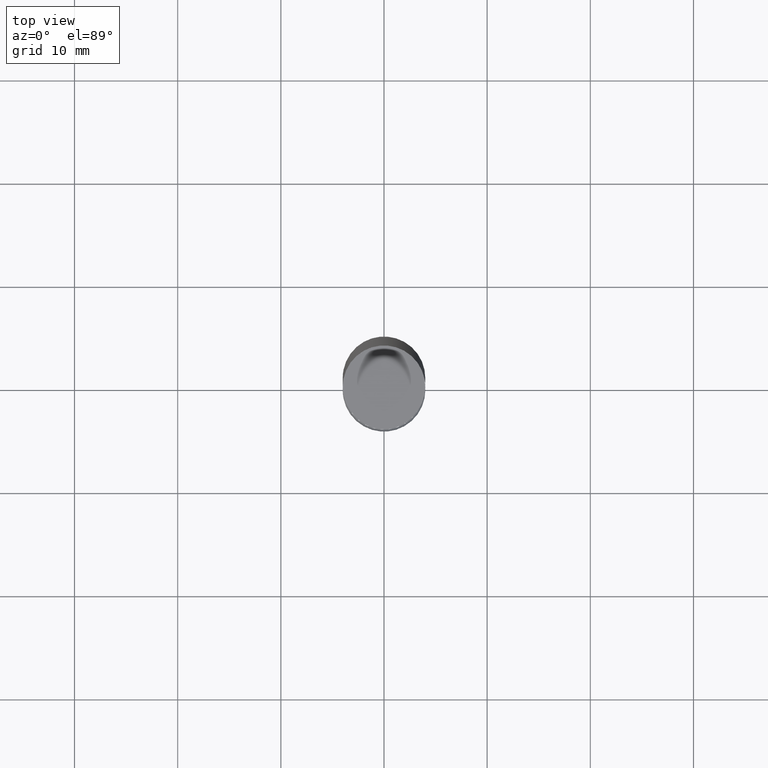
[diagram: clean part render]
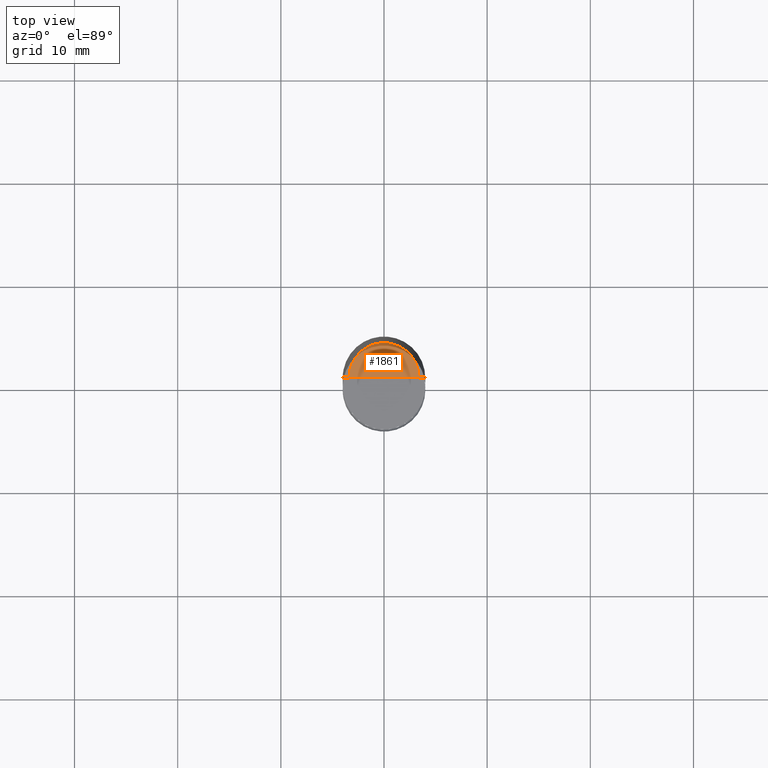
[diagram: same view with one face highlighted and labeled with its STEP entity id]
A machine part, top view. The second image highlights one B-rep face of the part: STEP entity #1861.
In plain terms, the highlighted face is a freeform B-spline surface patch.
Its self-contained STEP definition (entity closure, byte-faithful):
#1621=CARTESIAN_POINT('',(3.4,0.0,50.0));
#1622=CARTESIAN_POINT('',(3.4,3.4,50.0));
#1623=CARTESIAN_POINT('',(0.0,3.4,50.0));
#1624=CARTESIAN_POINT('',(-3.4,3.4,50.0));
#1625=CARTESIAN_POINT('',(-3.4,0.0,50.0));
#1626=CARTESIAN_POINT('',(0.0,0.0,50.0));
#1846=(
BOUNDED_SURFACE()
B_SPLINE_SURFACE(1,2,(
(#1621,#1622,#1623,#1624,#1625),
(#1626,#1626,#1626,#1626,#1626)
), .UNSPECIFIED.,.F.,.F.,.F.)
B_SPLINE_SURFACE_WITH_KNOTS((2,2),(3,2,3),(
0.0,1.0),(
0.0,0.5,1.0), .UNSPECIFIED.)
GEOMETRIC_REPRESENTATION_ITEM()
RATIONAL_B_SPLINE_SURFACE(((1.0,0.707106781187,1.0,0.707106781187,1.0),
(1.0,0.707106781187,1.0,0.707106781187,1.0)
))
REPRESENTATION_ITEM('')
SURFACE()
);
#1847=(
BOUNDED_CURVE()
B_SPLINE_CURVE(1,(#1626,#1621),.UNSPECIFIED.,.F.,.F.)
B_SPLINE_CURVE_WITH_KNOTS((2,2),
(0.0,1.0),.UNSPECIFIED.)
CURVE()
GEOMETRIC_REPRESENTATION_ITEM()
RATIONAL_B_SPLINE_CURVE((1.0,1.0))
REPRESENTATION_ITEM('')
);
#1848=(
BOUNDED_CURVE()
B_SPLINE_CURVE(2,(#1621,#1622,#1623,#1624,#1625),.UNSPECIFIED.,.F.,.F.)
B_SPLINE_CURVE_WITH_KNOTS((3,2,3),
(0.0,0.5,1.0),.UNSPECIFIED.)
CURVE()
GEOMETRIC_REPRESENTATION_ITEM()
RATIONAL_B_SPLINE_CURVE((1.0,0.707106781187,1.0,0.707106781187,1.0))
REPRESENTATION_ITEM('')
);
#1849=(
BOUNDED_CURVE()
B_SPLINE_CURVE(1,(#1625,#1626),.UNSPECIFIED.,.F.,.F.)
B_SPLINE_CURVE_WITH_KNOTS((2,2),
(0.0,1.0),.UNSPECIFIED.)
CURVE()
GEOMETRIC_REPRESENTATION_ITEM()
RATIONAL_B_SPLINE_CURVE((1.0,1.0))
REPRESENTATION_ITEM('')
);
#1850=VERTEX_POINT('',#1621);
#1851=VERTEX_POINT('',#1625);
#1852=VERTEX_POINT('',#1626);
#1853=EDGE_CURVE('',#1852,#1850,#1847,.T.);
#1854=EDGE_CURVE('',#1850,#1851,#1848,.T.);
#1855=EDGE_CURVE('',#1851,#1852,#1849,.T.);
#1856=ORIENTED_EDGE('',*,*,#1853,.T.);
#1857=ORIENTED_EDGE('',*,*,#1854,.T.);
#1858=ORIENTED_EDGE('',*,*,#1855,.T.);
#1859=EDGE_LOOP('',(#1856,#1857,#1858));
#1860=FACE_OUTER_BOUND('',#1859,.T.);
#1861=ADVANCED_FACE('',(#1860),#1846,.T.);